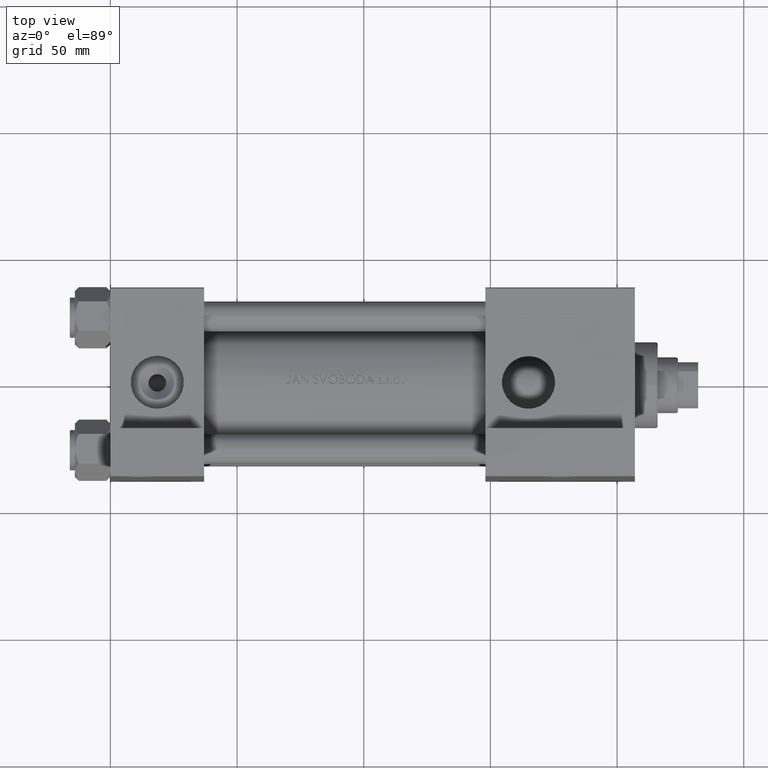
[diagram: clean part render]
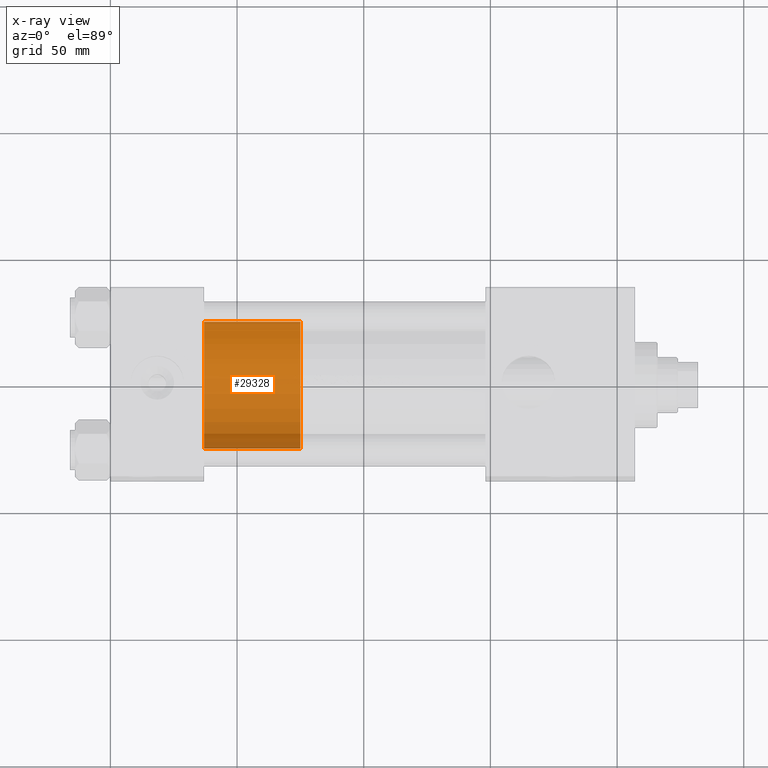
[diagram: x-ray — body ghosted, one internal face saturated and labeled with its STEP entity id]
A machine part, top view, then the same camera in x-ray: the body is ghosted and one INTERNAL B-rep face — a face not visible from any outside direction — is saturated and labeled: STEP entity #29328.
In plain terms, the highlighted cylindrical surface (partial cylindrical patch) has radius 25 mm, axis along (-1, 0, 0).
Its self-contained STEP definition (entity closure, byte-faithful):
#2024 = DIRECTION ( 'NONE',  ( 1.000000000000000000, 0.000000000000000000, 0.000000000000000000 ) ) ;
#5149 = DIRECTION ( 'NONE',  ( -0.000000000000000000, -0.000000000000000000, -1.000000000000000000 ) ) ;
#5650 = VECTOR ( 'NONE', #42998, 1000.000000000000000 ) ;
#5714 = VERTEX_POINT ( 'NONE', #45990 ) ;
#7335 = AXIS2_PLACEMENT_3D ( 'NONE', #36039, #44255, #13119 ) ;
#8611 = EDGE_LOOP ( 'NONE', ( #15878, #36314, #13852, #30817 ) ) ;
#9428 = AXIS2_PLACEMENT_3D ( 'NONE', #31903, #20931, #2024 ) ;
#11664 = EDGE_CURVE ( 'NONE', #45986, #5714, #45246, .T. ) ;
#13119 = DIRECTION ( 'NONE',  ( 1.000000000000000000, 0.000000000000000000, 0.000000000000000000 ) ) ;
#13852 = ORIENTED_EDGE ( 'NONE', *, *, #11664, .T. ) ;
#15878 = ORIENTED_EDGE ( 'NONE', *, *, #24852, .F. ) ;
#16800 = CARTESIAN_POINT ( 'NONE',  ( 0.000000000000000000, 0.000000000000000000, 38.00000000000000000 ) ) ;
#20931 = DIRECTION ( 'NONE',  ( 0.000000000000000000, 0.000000000000000000, 1.000000000000000000 ) ) ;
#23796 = CYLINDRICAL_SURFACE ( 'NONE', #46446, 25.00000000000000000 ) ;
#24852 = EDGE_CURVE ( 'NONE', #27126, #42325, #35167, .T. ) ;
#27126 = VERTEX_POINT ( 'NONE', #45099 ) ;
#28085 = VECTOR ( 'NONE', #5149, 1000.000000000000000 ) ;
#29328 = ADVANCED_FACE ( 'NONE', ( #38484 ), #23796, .T. ) ;
#30639 = EDGE_CURVE ( 'NONE', #27126, #45986, #35756, .T. ) ;
#30817 = ORIENTED_EDGE ( 'NONE', *, *, #38648, .F. ) ;
#31022 = DIRECTION ( 'NONE',  ( -1.000000000000000000, 0.000000000000000000, 0.000000000000000000 ) ) ;
#31291 = CARTESIAN_POINT ( 'NONE',  ( 25.00000000000000000, 3.061616997868383043E-15, 38.00000000000000000 ) ) ;
#31903 = CARTESIAN_POINT ( 'NONE',  ( 0.000000000000000000, 0.000000000000000000, 0.000000000000000000 ) ) ;
#35167 = CIRCLE ( 'NONE', #7335, 25.00000000000000000 ) ;
#35756 = LINE ( 'NONE', #31291, #5650 ) ;
#36039 = CARTESIAN_POINT ( 'NONE',  ( 0.000000000000000000, 0.000000000000000000, 38.00000000000000000 ) ) ;
#36314 = ORIENTED_EDGE ( 'NONE', *, *, #30639, .T. ) ;
#38175 = CARTESIAN_POINT ( 'NONE',  ( 25.00000000000000000, 3.061616997868383043E-15, 0.000000000000000000 ) ) ;
#38484 = FACE_OUTER_BOUND ( 'NONE', #8611, .T. ) ;
#38648 = EDGE_CURVE ( 'NONE', #42325, #5714, #42514, .T. ) ;
#42325 = VERTEX_POINT ( 'NONE', #47191 ) ;
#42514 = LINE ( 'NONE', #43015, #28085 ) ;
#42998 = DIRECTION ( 'NONE',  ( -0.000000000000000000, -0.000000000000000000, -1.000000000000000000 ) ) ;
#43015 = CARTESIAN_POINT ( 'NONE',  ( -25.00000000000000000, 0.000000000000000000, 38.00000000000000000 ) ) ;
#44255 = DIRECTION ( 'NONE',  ( 0.000000000000000000, 0.000000000000000000, 1.000000000000000000 ) ) ;
#45099 = CARTESIAN_POINT ( 'NONE',  ( 25.00000000000000000, 3.061616997868383043E-15, 38.00000000000000000 ) ) ;
#45246 = CIRCLE ( 'NONE', #9428, 25.00000000000000000 ) ;
#45986 = VERTEX_POINT ( 'NONE', #38175 ) ;
#45990 = CARTESIAN_POINT ( 'NONE',  ( -25.00000000000000000, 0.000000000000000000, 0.000000000000000000 ) ) ;
#46446 = AXIS2_PLACEMENT_3D ( 'NONE', #16800, #46466, #31022 ) ;
#46466 = DIRECTION ( 'NONE',  ( -0.000000000000000000, -0.000000000000000000, -1.000000000000000000 ) ) ;
#47191 = CARTESIAN_POINT ( 'NONE',  ( -25.00000000000000000, 0.000000000000000000, 38.00000000000000000 ) ) ;